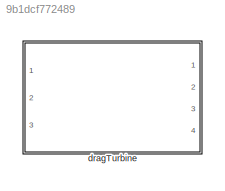
MODEL slx_9b1dcf772489
KIND library
CONFIG AbsTol = auto
CONFIG EnableMultiTasking = off
CONFIG FixedStep = auto
CONFIG MaxStep = auto
CONFIG MinStep = auto
CONFIG RelTol = 1e-3
CONFIG SampleTimeConstraint = Unconstrained
CONFIG Solver = VariableStepAuto
CONFIG SolverName = VariableStepAuto
CONFIG StartTime = 0.0
CONFIG StopTime = 10.0
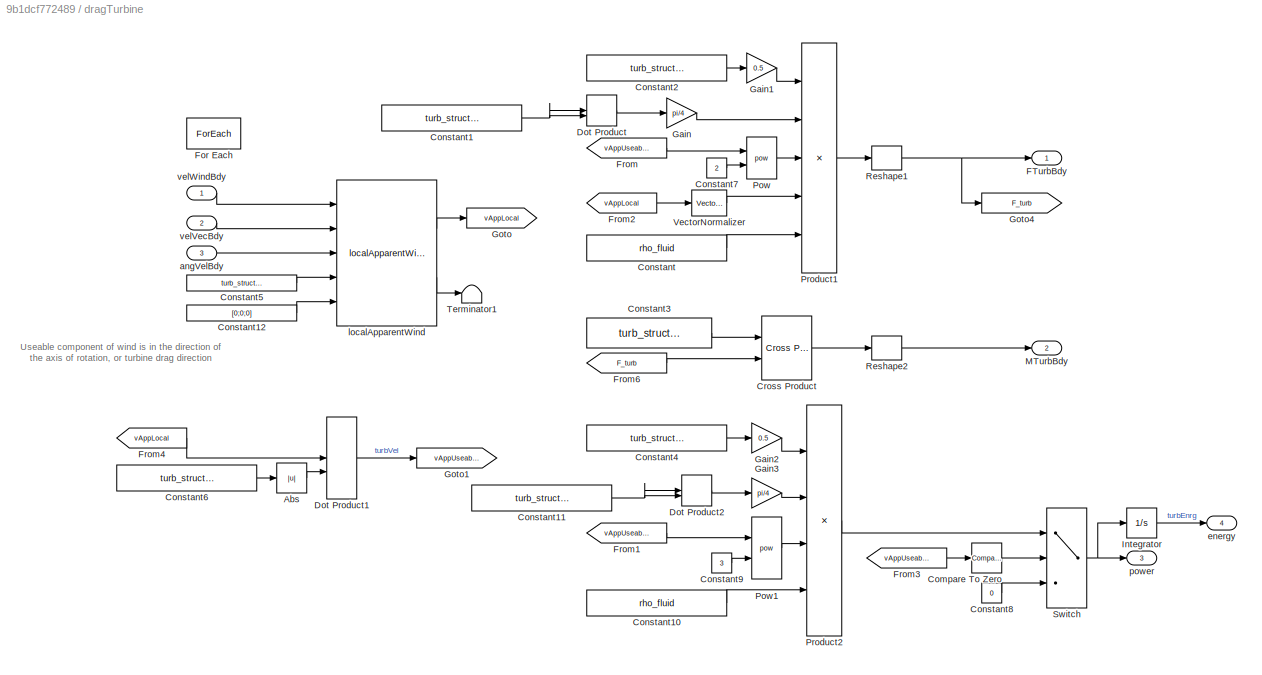
BLOCK [SubSystem] dragTurbine
  Ports = [3, 4]
  RequestExecContextInheritance = off
  TreatAsAtomicUnit = on
BLOCK [Abs] dragTurbine/Abs
  SaturateOnIntegerOverflow = off
BLOCK [Reference] dragTurbine/Compare To Zero  REF=simulink/Logic and Bit
Operations/Compare
To Zero
  Ports = [1, 1]
  SourceBlock = simulink/Logic and Bit\nOperations/Compare\nTo Zero
  SourceProductBaseCode = SL
  SourceType = Compare To Zero
BLOCK [Constant] dragTurbine/Constant
  Value = rho_fluid
BLOCK [Constant] dragTurbine/Constant1
  Value = turb_struct.diameter
  VectorParams1D = off
BLOCK [Constant] dragTurbine/Constant10
  Value = rho_fluid
BLOCK [Constant] dragTurbine/Constant11
  Value = turb_struct.diameter
  VectorParams1D = off
BLOCK [Constant] dragTurbine/Constant12
  Value = [0;0;0]
  VectorParams1D = off
BLOCK [Constant] dragTurbine/Constant2
  Value = turb_struct.dragCoeff
  VectorParams1D = off
BLOCK [Constant] dragTurbine/Constant3
  Value = turb_struct.momentArm
BLOCK [Constant] dragTurbine/Constant4
  Value = turb_struct.powerCoeff
  VectorParams1D = off
BLOCK [Constant] dragTurbine/Constant5
  Value = turb_struct.attachPtVec
BLOCK [Constant] dragTurbine/Constant6
  Value = turb_struct.axisUnitVec
BLOCK [Constant] dragTurbine/Constant7
  Value = 2
BLOCK [Constant] dragTurbine/Constant8
  Value = 0
BLOCK [Constant] dragTurbine/Constant9
  Value = 3
BLOCK [Reference] dragTurbine/Cross Product  REF=vrlib/Utilities/Cross Product
  Ports = [2, 1]
  SourceBlock = vrlib/Utilities/Cross Product
  SourceProductBaseCode = SL
  SourceType = Cross Product
BLOCK [DotProduct] dragTurbine/Dot Product
  OutDataTypeStr = Inherit: Inherit via internal rule
BLOCK [DotProduct] dragTurbine/Dot Product1
  OutDataTypeStr = Inherit: Inherit via internal rule
BLOCK [DotProduct] dragTurbine/Dot Product2
  OutDataTypeStr = Inherit: Inherit via internal rule
BLOCK [Outport] dragTurbine/FTurbBdy
  ConcatenationDimension = 2
  PortDimensions = [3,1]
  VectorParamsAs1DForOutWhenUnconnected = off
BLOCK [ForEach] dragTurbine/For Each
  DisableCoverage = on
  IterateSubsysMaskParameter = off,on
  Ports = []
  SubsysMaskParameterIterationDimension = 1,2
BLOCK [From] dragTurbine/From
  GotoTag = vAppUseable
BLOCK [From] dragTurbine/From1
  GotoTag = vAppUseable
BLOCK [From] dragTurbine/From2
  GotoTag = vAppLocal
BLOCK [From] dragTurbine/From3
  GotoTag = vAppUseable
BLOCK [From] dragTurbine/From4
  GotoTag = vAppLocal
BLOCK [From] dragTurbine/From6
  GotoTag = F_turb
BLOCK [Gain] dragTurbine/Gain
  Gain = pi/4
BLOCK [Gain] dragTurbine/Gain1
  Gain = 0.5
BLOCK [Gain] dragTurbine/Gain2
  Gain = 0.5
BLOCK [Gain] dragTurbine/Gain3
  Gain = pi/4
BLOCK [Goto] dragTurbine/Goto
  GotoTag = vAppLocal
BLOCK [Goto] dragTurbine/Goto1
  GotoTag = vAppUseable
BLOCK [Goto] dragTurbine/Goto4
  GotoTag = F_turb
BLOCK [Integrator] dragTurbine/Integrator
  Ports = [1, 1]
BLOCK [Outport] dragTurbine/MTurbBdy
  ConcatenationDimension = 2
  Port = 2
  PortDimensions = [3,1]
  VectorParamsAs1DForOutWhenUnconnected = off
BLOCK [Math] dragTurbine/Pow
  Operator = pow
  Ports = [2, 1]
  RndMeth = Zero
  SignedPower = on
BLOCK [Math] dragTurbine/Pow1
  Operator = pow
  Ports = [2, 1]
  RndMeth = Zero
  SignedPower = on
BLOCK [Product] dragTurbine/Product1
  Inputs = 5
  Ports = [5, 1]
BLOCK [Product] dragTurbine/Product2
  Inputs = 4
  Ports = [4, 1]
BLOCK [Reshape] dragTurbine/Reshape1
  OutputDimensionality = Column vector (2-D)
  Ports = [1, 1]
BLOCK [Reshape] dragTurbine/Reshape2
  OutputDimensionality = Column vector (2-D)
  Ports = [1, 1]
BLOCK [Switch] dragTurbine/Switch
  Criteria = u2 > Threshold
  InputSameDT = off
  SaturateOnIntegerOverflow = off
BLOCK [Terminator] dragTurbine/Terminator1
BLOCK [Reference] dragTurbine/VectorNormalizer   REF=vectorNormalizer_ul/VectorNormalizer

  Ports = [1, 1]
  SourceBlock = vectorNormalizer_ul/VectorNormalizer
  SourceType = SubSystem
BLOCK [Inport] dragTurbine/angVelBdy
  Port = 3
BLOCK [Outport] dragTurbine/energy
  ConcatenationDimension = 2
  Port = 4
  PortDimensions = [1,1]
  VectorParamsAs1DForOutWhenUnconnected = off
BLOCK [Reference] dragTurbine/localApparentWind  REF=localApparentWind_ul/localApparentWind
  Ports = [5, 2]
  SourceBlock = localApparentWind_ul/localApparentWind
  SourceType = SubSystem
BLOCK [Outport] dragTurbine/power
  ConcatenationDimension = 2
  Port = 3
  PortDimensions = [1,1]
  VectorParamsAs1DForOutWhenUnconnected = off
BLOCK [Inport] dragTurbine/velVecBdy
  Port = 2
BLOCK [Inport] dragTurbine/velWindBdy
ANNOTATION dragTurbine: Useable component of wind is in the direction of the axis of rotation, or turbine drag direction
LINE dragTurbine/Abs:1 -> dragTurbine/Dot Product1:2
LINE dragTurbine/Compare To Zero:1 -> dragTurbine/Switch:2
LINE dragTurbine/Constant10:1 -> dragTurbine/Product2:4
NET dragTurbine/Constant11:1 -> dragTurbine/Dot Product2:1, dragTurbine/Dot Product2:2
LINE dragTurbine/Constant12:1 -> dragTurbine/localApparentWind:5
NET dragTurbine/Constant1:1 -> dragTurbine/Dot Product:1, dragTurbine/Dot Product:2
LINE dragTurbine/Constant2:1 -> dragTurbine/Gain1:1
LINE dragTurbine/Constant3:1 -> dragTurbine/Cross Product:1
LINE dragTurbine/Constant4:1 -> dragTurbine/Gain2:1
LINE dragTurbine/Constant5:1 -> dragTurbine/localApparentWind:4
LINE dragTurbine/Constant6:1 -> dragTurbine/Abs:1
LINE dragTurbine/Constant7:1 -> dragTurbine/Pow:2
LINE dragTurbine/Constant8:1 -> dragTurbine/Switch:3
LINE dragTurbine/Constant9:1 -> dragTurbine/Pow1:2
LINE dragTurbine/Constant:1 -> dragTurbine/Product1:5
LINE dragTurbine/Cross Product:1 -> dragTurbine/Reshape2:1
LINE dragTurbine/Dot Product1:1 -> dragTurbine/Goto1:1
LINE dragTurbine/Dot Product2:1 -> dragTurbine/Gain3:1
LINE dragTurbine/Dot Product:1 -> dragTurbine/Gain:1
LINE dragTurbine/From1:1 -> dragTurbine/Pow1:1
LINE dragTurbine/From2:1 -> dragTurbine/VectorNormalizer :1
LINE dragTurbine/From3:1 -> dragTurbine/Compare To Zero:1
LINE dragTurbine/From4:1 -> dragTurbine/Dot Product1:1
LINE dragTurbine/From6:1 -> dragTurbine/Cross Product:2
LINE dragTurbine/From:1 -> dragTurbine/Pow:1
LINE dragTurbine/Gain1:1 -> dragTurbine/Product1:1
LINE dragTurbine/Gain2:1 -> dragTurbine/Product2:1
LINE dragTurbine/Gain3:1 -> dragTurbine/Product2:2
LINE dragTurbine/Gain:1 -> dragTurbine/Product1:2
LINE dragTurbine/Integrator:1 -> dragTurbine/energy:1
LINE dragTurbine/Pow1:1 -> dragTurbine/Product2:3
LINE dragTurbine/Pow:1 -> dragTurbine/Product1:3
LINE dragTurbine/Product1:1 -> dragTurbine/Reshape1:1
LINE dragTurbine/Product2:1 -> dragTurbine/Switch:1
NET dragTurbine/Reshape1:1 -> dragTurbine/FTurbBdy:1, dragTurbine/Goto4:1
LINE dragTurbine/Reshape2:1 -> dragTurbine/MTurbBdy:1
NET dragTurbine/Switch:1 -> dragTurbine/Integrator:1, dragTurbine/power:1
LINE dragTurbine/VectorNormalizer :1 -> dragTurbine/Product1:4
LINE dragTurbine/angVelBdy:1 -> dragTurbine/localApparentWind:3
LINE dragTurbine/localApparentWind:1 -> dragTurbine/Goto:1
LINE dragTurbine/localApparentWind:2 -> dragTurbine/Terminator1:1
LINE dragTurbine/velVecBdy:1 -> dragTurbine/localApparentWind:2
LINE dragTurbine/velWindBdy:1 -> dragTurbine/localApparentWind:1
note: NET lines group one-source signal fan-out (src -> all destinations, sorted); 1:1 wires keep LINE
